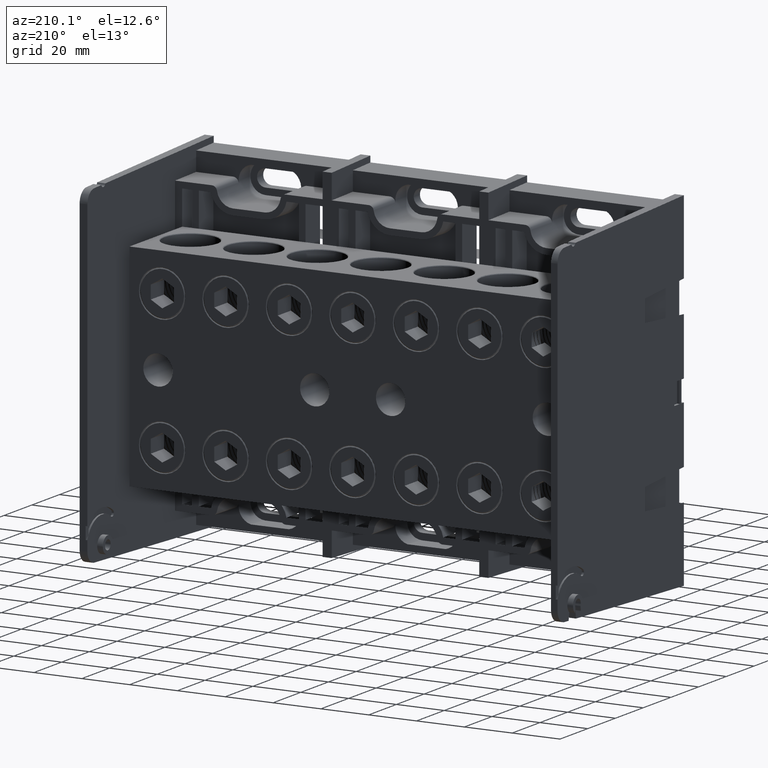
[diagram: clean part render]
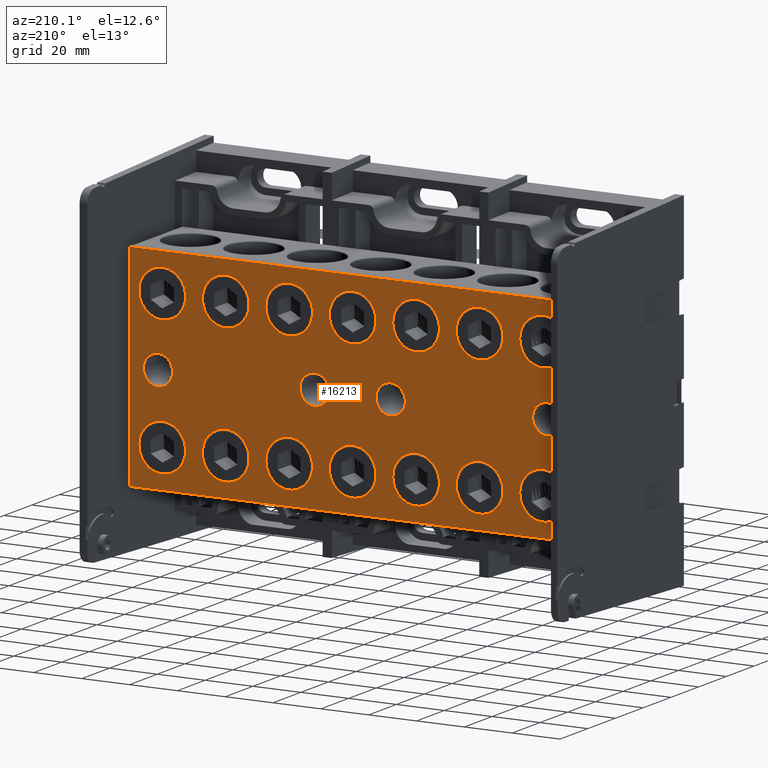
[diagram: same view with one face highlighted and labeled with its STEP entity id]
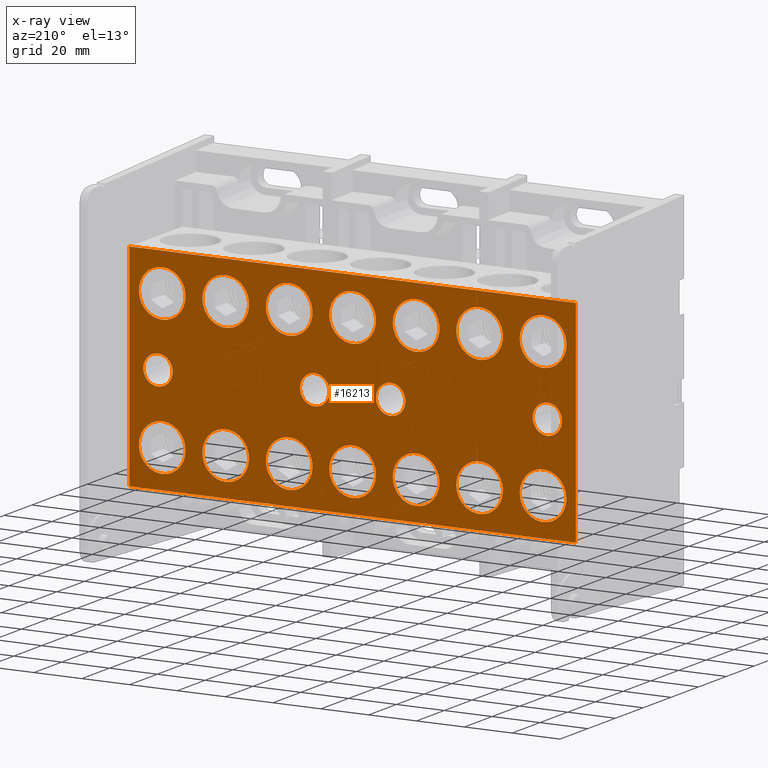
[diagram: x-ray of the same camera — body ghosted, the highlighted face saturated]
A machine part, auxiliary view. The second image highlights one B-rep face of the part: STEP entity #16213.
The next image is the same camera in x-ray: the body ghosted, the highlighted face saturated — about 0% of this face is hidden behind the body in this view.
In plain terms, the highlighted planar face has unit normal (0, -1, 0).
Its self-contained STEP definition (entity closure, byte-faithful):
#162 = AXIS2_PLACEMENT_3D ( 'NONE', #47654, #23982, #264 ) ;
#264 = DIRECTION ( 'NONE',  ( 1.000000000000000000, 0.0000000000000000000, 0.0000000000000000000 ) ) ;
#822 = FACE_OUTER_BOUND ( 'NONE', #20538, .T. ) ;
#1217 = ORIENTED_EDGE ( 'NONE', *, *, #4098, .F. ) ;
#1297 = CARTESIAN_POINT ( 'NONE',  ( 0.6249999999999998900, 0.7500000000000001100, 0.0000000000000000000 ) ) ;
#1704 = DIRECTION ( 'NONE',  ( -1.000000000000000000, -1.300879996982982700E-016, 0.0000000000000000000 ) ) ;
#2085 = FACE_BOUND ( 'NONE', #6182, .T. ) ;
#2221 = CARTESIAN_POINT ( 'NONE',  ( 2.089999999999999900, 0.7500000000000002200, -1.124999999999999800 ) ) ;
#2413 = ORIENTED_EDGE ( 'NONE', *, *, #13205, .F. ) ;
#2857 = CARTESIAN_POINT ( 'NONE',  ( -1.045000000000000200, 0.7499999999999998900, 1.124999999999999800 ) ) ;
#3000 = ORIENTED_EDGE ( 'NONE', *, *, #13107, .T. ) ;
#3294 = CARTESIAN_POINT ( 'NONE',  ( 0.6249999999999998900, 0.7500000000000001100, 0.2421899999999998800 ) ) ;
#3324 = FACE_BOUND ( 'NONE', #8128, .T. ) ;
#3360 = AXIS2_PLACEMENT_3D ( 'NONE', #40133, #16483, #44148 ) ;
#3500 = DIRECTION ( 'NONE',  ( -0.0000000000000000000, -0.0000000000000000000, -1.000000000000000000 ) ) ;
#3617 = CARTESIAN_POINT ( 'NONE',  ( 3.134999999999999800, 0.7500000000000003300, 1.124999999999999800 ) ) ;
#3759 = DIRECTION ( 'NONE',  ( 1.300879996982982500E-016, -1.000000000000000000, 0.0000000000000000000 ) ) ;
#4098 = EDGE_CURVE ( 'NONE', #9913, #34808, #49054, .T. ) ;
#4582 = FACE_BOUND ( 'NONE', #18983, .T. ) ;
#4784 = AXIS2_PLACEMENT_3D ( 'NONE', #17652, #45327, #21604 ) ;
#4861 = ORIENTED_EDGE ( 'NONE', *, *, #22582, .T. ) ;
#5180 = CARTESIAN_POINT ( 'NONE',  ( -0.6250000000000001100, 0.7499999999999997800, 0.0000000000000000000 ) ) ;
#5306 = DIRECTION ( 'NONE',  ( 0.0000000000000000000, 0.0000000000000000000, 1.000000000000000000 ) ) ;
#5625 = ORIENTED_EDGE ( 'NONE', *, *, #49245, .T. ) ;
#5871 = CARTESIAN_POINT ( 'NONE',  ( 3.519999999999999600, 0.7500000000000003300, -1.124999999999999800 ) ) ;
#5884 = CARTESIAN_POINT ( 'NONE',  ( -3.134999999999999800, 0.7499999999999996700, 1.124999999999999800 ) ) ;
#5964 = EDGE_CURVE ( 'NONE', #29253, #29253, #43723, .T. ) ;
#6107 = AXIS2_PLACEMENT_3D ( 'NONE', #39416, #15775, #43396 ) ;
#6182 = EDGE_LOOP ( 'NONE', ( #45072 ) ) ;
#6217 = ORIENTED_EDGE ( 'NONE', *, *, #7804, .T. ) ;
#6233 = DIRECTION ( 'NONE',  ( 1.000000000000000000, 0.0000000000000000000, 0.0000000000000000000 ) ) ;
#6396 = CARTESIAN_POINT ( 'NONE',  ( -2.750000000000000000, 0.7499999999999996700, 1.124999999999999800 ) ) ;
#6626 = DIRECTION ( 'NONE',  ( 1.300879996982982500E-016, -1.000000000000000000, 0.0000000000000000000 ) ) ;
#6705 = ORIENTED_EDGE ( 'NONE', *, *, #26294, .F. ) ;
#6875 = DIRECTION ( 'NONE',  ( 1.000000000000000000, 0.0000000000000000000, 0.0000000000000000000 ) ) ;
#6918 = VERTEX_POINT ( 'NONE', #31454 ) ;
#7325 = AXIS2_PLACEMENT_3D ( 'NONE', #8435, #36075, #12442 ) ;
#7423 = AXIS2_PLACEMENT_3D ( 'NONE', #40102, #16450, #44117 ) ;
#7647 = DIRECTION ( 'NONE',  ( 1.000000000000000000, 0.0000000000000000000, 0.0000000000000000000 ) ) ;
#7704 = AXIS2_PLACEMENT_3D ( 'NONE', #32347, #8711, #36345 ) ;
#7804 = EDGE_CURVE ( 'NONE', #46583, #46583, #40396, .T. ) ;
#7808 = VECTOR ( 'NONE', #9575, 39.37007874015748100 ) ;
#8128 = EDGE_LOOP ( 'NONE', ( #6217 ) ) ;
#8134 = CIRCLE ( 'NONE', #46231, 0.3850000000000006800 ) ;
#8435 = CARTESIAN_POINT ( 'NONE',  ( -3.134999999999999800, 0.7499999999999996700, -1.124999999999999800 ) ) ;
#8711 = DIRECTION ( 'NONE',  ( 1.300879996982982500E-016, -1.000000000000000000, 0.0000000000000000000 ) ) ;
#9035 = LINE ( 'NONE', #48937, #7808 ) ;
#9148 = DIRECTION ( 'NONE',  ( 0.0000000000000000000, 0.0000000000000000000, 1.000000000000000000 ) ) ;
#9289 = LINE ( 'NONE', #48918, #39580 ) ;
#9575 = DIRECTION ( 'NONE',  ( -0.0000000000000000000, -0.0000000000000000000, -1.000000000000000000 ) ) ;
#9886 = DIRECTION ( 'NONE',  ( 1.000000000000000000, 0.0000000000000000000, 0.0000000000000000000 ) ) ;
#9913 = VERTEX_POINT ( 'NONE', #43591 ) ;
#9916 = AXIS2_PLACEMENT_3D ( 'NONE', #3617, #31272, #7647 ) ;
#10196 = CARTESIAN_POINT ( 'NONE',  ( 3.204999999999999600, 0.7500000000000003300, 0.2421899999999997400 ) ) ;
#10600 = CARTESIAN_POINT ( 'NONE',  ( -1.704999999999997900, 0.7499999999999997800, -1.124999999999999800 ) ) ;
#10772 = CARTESIAN_POINT ( 'NONE',  ( -1.704999999999999200, 0.7499999999999997800, 1.124999999999999800 ) ) ;
#11072 = CARTESIAN_POINT ( 'NONE',  ( 3.674999999999999800, 0.7500000000000004400, -1.750000000000000000 ) ) ;
#11257 = EDGE_LOOP ( 'NONE', ( #42067 ) ) ;
#11401 = FACE_BOUND ( 'NONE', #26559, .T. ) ;
#12306 = EDGE_LOOP ( 'NONE', ( #6705 ) ) ;
#12442 = DIRECTION ( 'NONE',  ( 1.000000000000000000, 0.0000000000000000000, 0.0000000000000000000 ) ) ;
#12528 = VERTEX_POINT ( 'NONE', #43567 ) ;
#12681 = FACE_BOUND ( 'NONE', #36262, .T. ) ;
#13032 = EDGE_CURVE ( 'NONE', #18136, #18136, #8134, .T. ) ;
#13107 = EDGE_CURVE ( 'NONE', #48406, #48406, #16157, .T. ) ;
#13205 = EDGE_CURVE ( 'NONE', #37908, #37908, #37108, .T. ) ;
#13708 = VERTEX_POINT ( 'NONE', #44606 ) ;
#13894 = FACE_BOUND ( 'NONE', #14324, .T. ) ;
#14239 = CIRCLE ( 'NONE', #14698, 0.3849999999999989000 ) ;
#14324 = EDGE_LOOP ( 'NONE', ( #23505 ) ) ;
#14698 = AXIS2_PLACEMENT_3D ( 'NONE', #30279, #6626, #34253 ) ;
#14977 = VERTEX_POINT ( 'NONE', #23693 ) ;
#15498 = EDGE_CURVE ( 'NONE', #44708, #44708, #36282, .T. ) ;
#15582 = VERTEX_POINT ( 'NONE', #24202 ) ;
#15674 = EDGE_LOOP ( 'NONE', ( #33966 ) ) ;
#15775 = DIRECTION ( 'NONE',  ( 1.300879996982982500E-016, -1.000000000000000000, 0.0000000000000000000 ) ) ;
#16157 = CIRCLE ( 'NONE', #162, 0.3850000000000002900 ) ;
#16213 = ADVANCED_FACE ( 'NONE', ( #38615, #45440, #4582, #36137, #34872, #25627, #24372, #13894, #3324, #44182, #33662, #23126, #12681, #2085, #42916, #32391, #21890, #11401, #822 ), #43962, .F. ) ;
#16214 = VERTEX_POINT ( 'NONE', #39422 ) ;
#16388 = EDGE_LOOP ( 'NONE', ( #36469 ) ) ;
#16450 = DIRECTION ( 'NONE',  ( -0.0000000000000000000, 1.000000000000000000, -0.0000000000000000000 ) ) ;
#16483 = DIRECTION ( 'NONE',  ( 1.300879996982982500E-016, -1.000000000000000000, 0.0000000000000000000 ) ) ;
#17334 = ORIENTED_EDGE ( 'NONE', *, *, #38498, .F. ) ;
#17499 = DIRECTION ( 'NONE',  ( -0.0000000000000000000, 1.000000000000000000, -0.0000000000000000000 ) ) ;
#17652 = CARTESIAN_POINT ( 'NONE',  ( -2.089999999999999900, 0.7499999999999997800, 1.124999999999999800 ) ) ;
#17753 = DIRECTION ( 'NONE',  ( 1.300879996982982500E-016, -1.000000000000000000, 0.0000000000000000000 ) ) ;
#17769 = AXIS2_PLACEMENT_3D ( 'NONE', #1297, #28958, #5306 ) ;
#17934 = ORIENTED_EDGE ( 'NONE', *, *, #46144, .F. ) ;
#18136 = VERTEX_POINT ( 'NONE', #23003 ) ;
#18983 = EDGE_LOOP ( 'NONE', ( #4861 ) ) ;
#19193 = VERTEX_POINT ( 'NONE', #41929 ) ;
#19511 = DIRECTION ( 'NONE',  ( 1.300879996982982500E-016, -1.000000000000000000, 0.0000000000000000000 ) ) ;
#19848 = VERTEX_POINT ( 'NONE', #5871 ) ;
#19925 = EDGE_CURVE ( 'NONE', #6918, #6918, #47388, .T. ) ;
#20070 = CIRCLE ( 'NONE', #33401, 0.2421899999999998800 ) ;
#20420 = EDGE_CURVE ( 'NONE', #16214, #16214, #50356, .T. ) ;
#20442 = VERTEX_POINT ( 'NONE', #6396 ) ;
#20538 = EDGE_LOOP ( 'NONE', ( #42646, #17334, #1217, #36532 ) ) ;
#21019 = EDGE_LOOP ( 'NONE', ( #5625 ) ) ;
#21084 = EDGE_CURVE ( 'NONE', #9913, #32170, #26087, .T. ) ;
#21518 = EDGE_CURVE ( 'NONE', #14977, #14977, #23538, .T. ) ;
#21604 = DIRECTION ( 'NONE',  ( 1.000000000000000000, 0.0000000000000000000, 0.0000000000000000000 ) ) ;
#21806 = EDGE_LOOP ( 'NONE', ( #33436 ) ) ;
#21890 = FACE_BOUND ( 'NONE', #49777, .T. ) ;
#22582 = EDGE_CURVE ( 'NONE', #12528, #12528, #28233, .T. ) ;
#23003 = CARTESIAN_POINT ( 'NONE',  ( -0.6599999999999993600, 0.7499999999999998900, -1.124999999999999800 ) ) ;
#23126 = FACE_BOUND ( 'NONE', #36590, .T. ) ;
#23212 = CARTESIAN_POINT ( 'NONE',  ( 3.674999999999999800, 0.7500000000000004400, 1.750000000000000000 ) ) ;
#23505 = ORIENTED_EDGE ( 'NONE', *, *, #48644, .T. ) ;
#23538 = CIRCLE ( 'NONE', #6107, 0.3849999999999992900 ) ;
#23683 = DIRECTION ( 'NONE',  ( 1.300879996982982500E-016, -1.000000000000000000, 0.0000000000000000000 ) ) ;
#23693 = CARTESIAN_POINT ( 'NONE',  ( 2.474999999999999200, 0.7500000000000002200, 1.124999999999999800 ) ) ;
#23978 = CIRCLE ( 'NONE', #50440, 0.3849999999999998400 ) ;
#23982 = DIRECTION ( 'NONE',  ( 1.300879996982982500E-016, -1.000000000000000000, 0.0000000000000000000 ) ) ;
#24029 = CIRCLE ( 'NONE', #7423, 0.2421899999999997400 ) ;
#24116 = VERTEX_POINT ( 'NONE', #42638 ) ;
#24202 = CARTESIAN_POINT ( 'NONE',  ( -3.204999999999999600, 0.7499999999999995600, 0.2421899999999997400 ) ) ;
#24372 = FACE_BOUND ( 'NONE', #35867, .T. ) ;
#25605 = CARTESIAN_POINT ( 'NONE',  ( 3.674999999999999800, 0.7500000000000004400, 1.750000000000000000 ) ) ;
#25627 = FACE_BOUND ( 'NONE', #16388, .T. ) ;
#26011 = EDGE_CURVE ( 'NONE', #47098, #47098, #14239, .T. ) ;
#26059 = ORIENTED_EDGE ( 'NONE', *, *, #26011, .T. ) ;
#26087 = LINE ( 'NONE', #23212, #27301 ) ;
#26294 = EDGE_CURVE ( 'NONE', #15582, #15582, #24029, .T. ) ;
#26559 = EDGE_LOOP ( 'NONE', ( #17934 ) ) ;
#26953 = CARTESIAN_POINT ( 'NONE',  ( 0.3850000000000001800, 0.7499999999999998900, -1.124999999999999800 ) ) ;
#27301 = VECTOR ( 'NONE', #3500, 39.37007874015748100 ) ;
#27425 = CARTESIAN_POINT ( 'NONE',  ( -1.045000000000000200, 0.7499999999999998900, -1.124999999999999800 ) ) ;
#27908 = CARTESIAN_POINT ( 'NONE',  ( -3.674999999999999800, 0.7499999999999995600, 1.750000000000000000 ) ) ;
#28036 = VECTOR ( 'NONE', #33710, 39.37007874015748100 ) ;
#28233 = CIRCLE ( 'NONE', #40932, 0.3849999999999994500 ) ;
#28405 = EDGE_LOOP ( 'NONE', ( #3000 ) ) ;
#28958 = DIRECTION ( 'NONE',  ( -0.0000000000000000000, 1.000000000000000000, -0.0000000000000000000 ) ) ;
#29253 = VERTEX_POINT ( 'NONE', #10600 ) ;
#29730 = CIRCLE ( 'NONE', #42465, 0.3849999999999982300 ) ;
#29891 = DIRECTION ( 'NONE',  ( 1.300879996982982500E-016, -1.000000000000000000, 0.0000000000000000000 ) ) ;
#30202 = CARTESIAN_POINT ( 'NONE',  ( 2.475000000000000100, 0.7500000000000002200, -1.124999999999999800 ) ) ;
#30279 = CARTESIAN_POINT ( 'NONE',  ( 1.044999999999999700, 0.7500000000000001100, 1.124999999999999800 ) ) ;
#30491 = AXIS2_PLACEMENT_3D ( 'NONE', #41152, #17499, #45150 ) ;
#30547 = DIRECTION ( 'NONE',  ( 1.300879996982982500E-016, -1.000000000000000000, 0.0000000000000000000 ) ) ;
#31131 = CARTESIAN_POINT ( 'NONE',  ( -2.749999999999998700, 0.7499999999999996700, -1.124999999999999800 ) ) ;
#31272 = DIRECTION ( 'NONE',  ( 1.300879996982982500E-016, -1.000000000000000000, 0.0000000000000000000 ) ) ;
#31405 = DIRECTION ( 'NONE',  ( 1.000000000000000000, 0.0000000000000000000, 0.0000000000000000000 ) ) ;
#31454 = CARTESIAN_POINT ( 'NONE',  ( 3.519999999999998700, 0.7500000000000003300, 1.124999999999999800 ) ) ;
#32170 = VERTEX_POINT ( 'NONE', #11072 ) ;
#32347 = CARTESIAN_POINT ( 'NONE',  ( -2.089999999999999900, 0.7499999999999997800, -1.124999999999999800 ) ) ;
#32391 = FACE_BOUND ( 'NONE', #44164, .T. ) ;
#32802 = DIRECTION ( 'NONE',  ( -0.0000000000000000000, 1.000000000000000000, -0.0000000000000000000 ) ) ;
#33166 = EDGE_LOOP ( 'NONE', ( #50126 ) ) ;
#33395 = VERTEX_POINT ( 'NONE', #10196 ) ;
#33401 = AXIS2_PLACEMENT_3D ( 'NONE', #5180, #32802, #9148 ) ;
#33436 = ORIENTED_EDGE ( 'NONE', *, *, #20420, .T. ) ;
#33543 = DIRECTION ( 'NONE',  ( 1.300879996982982500E-016, -1.000000000000000000, 0.0000000000000000000 ) ) ;
#33662 = FACE_BOUND ( 'NONE', #21019, .T. ) ;
#33710 = DIRECTION ( 'NONE',  ( -1.000000000000000000, -1.300879996982982700E-016, 0.0000000000000000000 ) ) ;
#33854 = CIRCLE ( 'NONE', #46450, 0.3849999999999998400 ) ;
#33966 = ORIENTED_EDGE ( 'NONE', *, *, #13032, .T. ) ;
#34163 = EDGE_CURVE ( 'NONE', #13708, #13708, #20070, .T. ) ;
#34253 = DIRECTION ( 'NONE',  ( 1.000000000000000000, 0.0000000000000000000, 0.0000000000000000000 ) ) ;
#34808 = VERTEX_POINT ( 'NONE', #27908 ) ;
#34872 = FACE_BOUND ( 'NONE', #15674, .T. ) ;
#35867 = EDGE_LOOP ( 'NONE', ( #47610 ) ) ;
#36075 = DIRECTION ( 'NONE',  ( 1.300879996982982500E-016, -1.000000000000000000, 0.0000000000000000000 ) ) ;
#36137 = FACE_BOUND ( 'NONE', #28405, .T. ) ;
#36205 = CIRCLE ( 'NONE', #45254, 0.3850000000000004000 ) ;
#36262 = EDGE_LOOP ( 'NONE', ( #42746 ) ) ;
#36282 = CIRCLE ( 'NONE', #7325, 0.3850000000000009500 ) ;
#36345 = DIRECTION ( 'NONE',  ( 1.000000000000000000, 0.0000000000000000000, 0.0000000000000000000 ) ) ;
#36469 = ORIENTED_EDGE ( 'NONE', *, *, #5964, .T. ) ;
#36532 = ORIENTED_EDGE ( 'NONE', *, *, #21084, .T. ) ;
#36590 = EDGE_LOOP ( 'NONE', ( #26059 ) ) ;
#37108 = CIRCLE ( 'NONE', #17769, 0.2421899999999998800 ) ;
#37908 = VERTEX_POINT ( 'NONE', #3294 ) ;
#38498 = EDGE_CURVE ( 'NONE', #34808, #24116, #9035, .T. ) ;
#38615 = FACE_BOUND ( 'NONE', #33166, .T. ) ;
#39416 = CARTESIAN_POINT ( 'NONE',  ( 2.089999999999999900, 0.7500000000000002200, 1.124999999999999800 ) ) ;
#39422 = CARTESIAN_POINT ( 'NONE',  ( -0.6599999999999991400, 0.7499999999999998900, 1.124999999999999800 ) ) ;
#39580 = VECTOR ( 'NONE', #1704, 39.37007874015748100 ) ;
#40102 = CARTESIAN_POINT ( 'NONE',  ( -3.204999999999999600, 0.7499999999999995600, 0.0000000000000000000 ) ) ;
#40133 = CARTESIAN_POINT ( 'NONE',  ( 3.674999999999999800, 0.7500000000000004400, 1.750000000000000000 ) ) ;
#40396 = CIRCLE ( 'NONE', #4784, 0.3850000000000006800 ) ;
#40804 = CIRCLE ( 'NONE', #30491, 0.2421899999999997400 ) ;
#40932 = AXIS2_PLACEMENT_3D ( 'NONE', #43142, #19511, #47151 ) ;
#41152 = CARTESIAN_POINT ( 'NONE',  ( 3.204999999999999600, 0.7500000000000003300, 0.0000000000000000000 ) ) ;
#41406 = CARTESIAN_POINT ( 'NONE',  ( -9.756599977372367400E-017, 0.7499999999999998900, 1.124999999999999800 ) ) ;
#41929 = CARTESIAN_POINT ( 'NONE',  ( 0.3849999999999981200, 0.7499999999999998900, 1.124999999999999800 ) ) ;
#42067 = ORIENTED_EDGE ( 'NONE', *, *, #50602, .T. ) ;
#42465 = AXIS2_PLACEMENT_3D ( 'NONE', #41406, #17753, #45430 ) ;
#42638 = CARTESIAN_POINT ( 'NONE',  ( -3.674999999999999800, 0.7499999999999995600, -1.750000000000000000 ) ) ;
#42646 = ORIENTED_EDGE ( 'NONE', *, *, #46148, .T. ) ;
#42746 = ORIENTED_EDGE ( 'NONE', *, *, #21518, .T. ) ;
#42817 = EDGE_CURVE ( 'NONE', #19848, #19848, #23978, .T. ) ;
#42916 = FACE_BOUND ( 'NONE', #12306, .T. ) ;
#43142 = CARTESIAN_POINT ( 'NONE',  ( 1.044999999999999700, 0.7500000000000001100, -1.124999999999999800 ) ) ;
#43396 = DIRECTION ( 'NONE',  ( 1.000000000000000000, 0.0000000000000000000, 0.0000000000000000000 ) ) ;
#43567 = CARTESIAN_POINT ( 'NONE',  ( 1.429999999999999300, 0.7500000000000001100, -1.124999999999999800 ) ) ;
#43591 = CARTESIAN_POINT ( 'NONE',  ( 3.674999999999999800, 0.7500000000000004400, 1.750000000000000000 ) ) ;
#43723 = CIRCLE ( 'NONE', #7704, 0.3850000000000020600 ) ;
#43911 = CARTESIAN_POINT ( 'NONE',  ( 1.429999999999998600, 0.7500000000000001100, 1.124999999999999800 ) ) ;
#43962 = PLANE ( 'NONE',  #3360 ) ;
#44117 = DIRECTION ( 'NONE',  ( 0.0000000000000000000, 0.0000000000000000000, 1.000000000000000000 ) ) ;
#44148 = DIRECTION ( 'NONE',  ( 1.000000000000000000, 1.300879996982982500E-016, 0.0000000000000000000 ) ) ;
#44164 = EDGE_LOOP ( 'NONE', ( #46347 ) ) ;
#44182 = FACE_BOUND ( 'NONE', #21806, .T. ) ;
#44606 = CARTESIAN_POINT ( 'NONE',  ( -0.6250000000000001100, 0.7499999999999997800, 0.2421899999999998800 ) ) ;
#44708 = VERTEX_POINT ( 'NONE', #31131 ) ;
#45072 = ORIENTED_EDGE ( 'NONE', *, *, #19925, .T. ) ;
#45150 = DIRECTION ( 'NONE',  ( 0.0000000000000000000, 0.0000000000000000000, 1.000000000000000000 ) ) ;
#45254 = AXIS2_PLACEMENT_3D ( 'NONE', #2221, #29891, #6233 ) ;
#45327 = DIRECTION ( 'NONE',  ( 1.300879996982982500E-016, -1.000000000000000000, 0.0000000000000000000 ) ) ;
#45430 = DIRECTION ( 'NONE',  ( 1.000000000000000000, 0.0000000000000000000, 0.0000000000000000000 ) ) ;
#45440 = FACE_BOUND ( 'NONE', #11257, .T. ) ;
#46144 = EDGE_CURVE ( 'NONE', #33395, #33395, #40804, .T. ) ;
#46148 = EDGE_CURVE ( 'NONE', #32170, #24116, #9289, .T. ) ;
#46231 = AXIS2_PLACEMENT_3D ( 'NONE', #27425, #3759, #31405 ) ;
#46347 = ORIENTED_EDGE ( 'NONE', *, *, #34163, .F. ) ;
#46450 = AXIS2_PLACEMENT_3D ( 'NONE', #5884, #33543, #9886 ) ;
#46583 = VERTEX_POINT ( 'NONE', #10772 ) ;
#47098 = VERTEX_POINT ( 'NONE', #43911 ) ;
#47151 = DIRECTION ( 'NONE',  ( 1.000000000000000000, 0.0000000000000000000, 0.0000000000000000000 ) ) ;
#47364 = CARTESIAN_POINT ( 'NONE',  ( 3.134999999999999800, 0.7500000000000003300, -1.124999999999999800 ) ) ;
#47388 = CIRCLE ( 'NONE', #9916, 0.3849999999999987900 ) ;
#47610 = ORIENTED_EDGE ( 'NONE', *, *, #15498, .T. ) ;
#47654 = CARTESIAN_POINT ( 'NONE',  ( -9.756599977372367400E-017, 0.7499999999999998900, -1.124999999999999800 ) ) ;
#48218 = VERTEX_POINT ( 'NONE', #30202 ) ;
#48406 = VERTEX_POINT ( 'NONE', #26953 ) ;
#48644 = EDGE_CURVE ( 'NONE', #20442, #20442, #33854, .T. ) ;
#48918 = CARTESIAN_POINT ( 'NONE',  ( 3.674999999999999800, 0.7500000000000004400, -1.750000000000000000 ) ) ;
#48937 = CARTESIAN_POINT ( 'NONE',  ( -3.674999999999999800, 0.7499999999999995600, 1.750000000000000000 ) ) ;
#49054 = LINE ( 'NONE', #25605, #28036 ) ;
#49245 = EDGE_CURVE ( 'NONE', #19193, #19193, #29730, .T. ) ;
#49777 = EDGE_LOOP ( 'NONE', ( #2413 ) ) ;
#50126 = ORIENTED_EDGE ( 'NONE', *, *, #42817, .T. ) ;
#50301 = AXIS2_PLACEMENT_3D ( 'NONE', #2857, #30547, #6875 ) ;
#50356 = CIRCLE ( 'NONE', #50301, 0.3850000000000009500 ) ;
#50440 = AXIS2_PLACEMENT_3D ( 'NONE', #47364, #23683, #51344 ) ;
#50602 = EDGE_CURVE ( 'NONE', #48218, #48218, #36205, .T. ) ;
#51344 = DIRECTION ( 'NONE',  ( 1.000000000000000000, 0.0000000000000000000, 0.0000000000000000000 ) ) ;